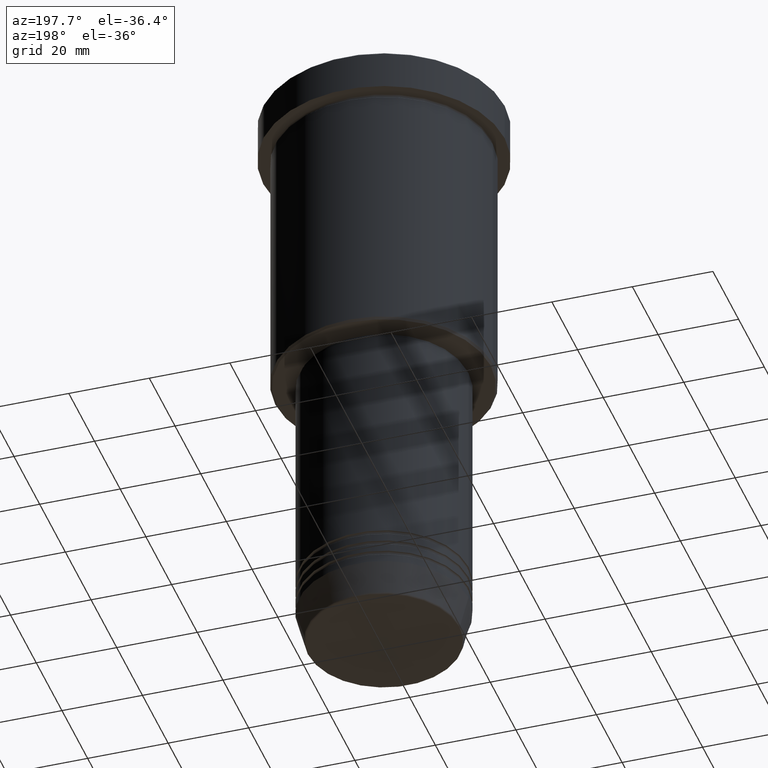
[diagram: clean part render]
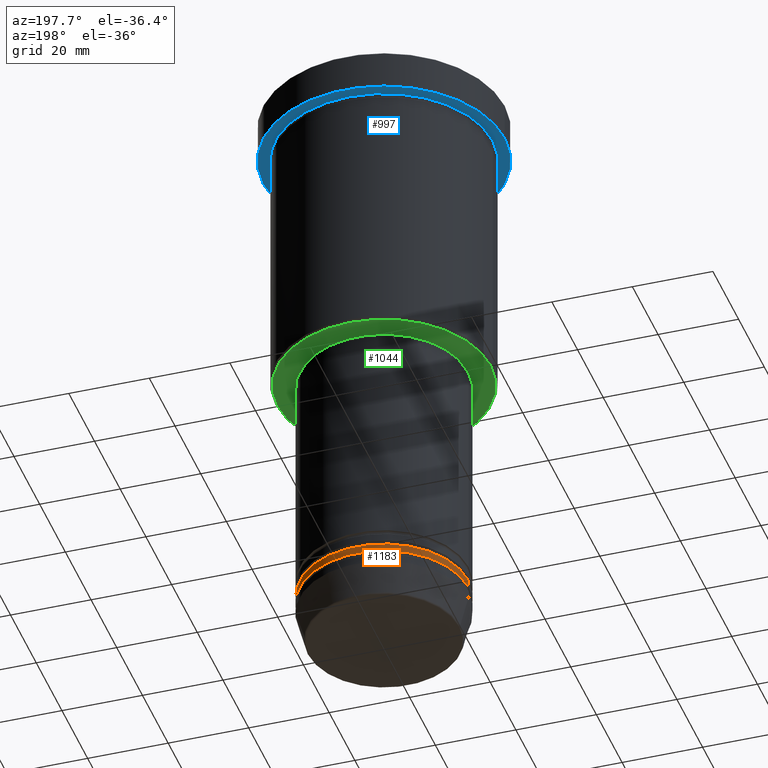
[diagram: same view with three faces highlighted in distinct colors, each labeled with its STEP entity id]
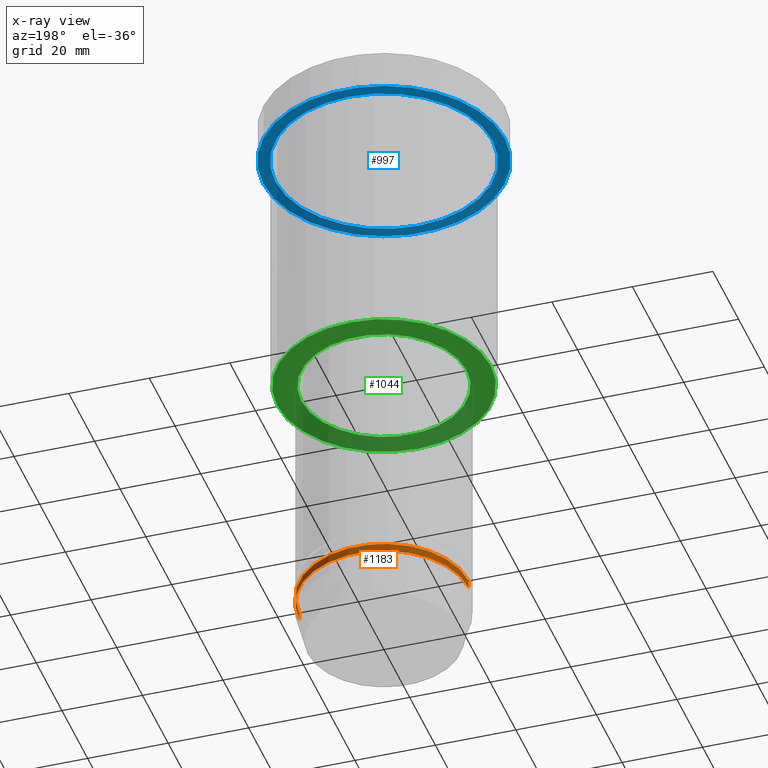
[diagram: x-ray of the same camera — body ghosted, the three highlighted faces saturated]
A machine part, auxiliary view with three faces highlighted in distinct colors.
The next image is the same camera in x-ray (body ghosted, the three faces saturated) — at least one of them is partly hidden behind the body in this view.
Their STEP definitions:

[orange] entity #1183 — the highlighted cylindrical surface (partial cylindrical patch) has radius 21 mm, axis along (-0, -0, 1).
#22 = DIRECTION ( 'NONE',  ( -0.000000000000000000, -0.000000000000000000, 1.000000000000000000 ) ) ;
#37 = DIRECTION ( 'NONE',  ( -0.000000000000000000, -0.000000000000000000, 1.000000000000000000 ) ) ;
#61 = DIRECTION ( 'NONE',  ( 1.000000000000000000, 0.000000000000000000, 0.000000000000000000 ) ) ;
#121 = VECTOR ( 'NONE', #37, 1000.000000000000000 ) ;
#129 = EDGE_CURVE ( 'NONE', #863, #1022, #723, .T. ) ;
#135 = ORIENTED_EDGE ( 'NONE', *, *, #440, .F. ) ;
#147 = DIRECTION ( 'NONE',  ( -0.000000000000000000, -0.000000000000000000, 1.000000000000000000 ) ) ;
#188 = ORIENTED_EDGE ( 'NONE', *, *, #129, .T. ) ;
#202 = DIRECTION ( 'NONE',  ( 1.000000000000000000, 0.000000000000000000, 0.000000000000000000 ) ) ;
#232 = CARTESIAN_POINT ( 'NONE',  ( -21.00000000000000000, 2.571758278209441661E-15, -139.9999999999999716 ) ) ;
#244 = CARTESIAN_POINT ( 'NONE',  ( 21.00000000000000000, 0.000000000000000000, -137.9999999999999432 ) ) ;
#293 = AXIS2_PLACEMENT_3D ( 'NONE', #1037, #592, #61 ) ;
#356 = FACE_OUTER_BOUND ( 'NONE', #1163, .T. ) ;
#392 = VERTEX_POINT ( 'NONE', #1014 ) ;
#404 = CIRCLE ( 'NONE', #736, 21.00000000000000000 ) ;
#411 = EDGE_CURVE ( 'NONE', #1022, #392, #1144, .T. ) ;
#422 = DIRECTION ( 'NONE',  ( 1.000000000000000000, 0.000000000000000000, 0.000000000000000000 ) ) ;
#440 = EDGE_CURVE ( 'NONE', #863, #1154, #1153, .T. ) ;
#481 = CARTESIAN_POINT ( 'NONE',  ( -21.00000000000000000, 2.571758278209441661E-15, 0.000000000000000000 ) ) ;
#586 = AXIS2_PLACEMENT_3D ( 'NONE', #896, #1077, #422 ) ;
#592 = DIRECTION ( 'NONE',  ( -0.000000000000000000, -0.000000000000000000, 1.000000000000000000 ) ) ;
#612 = CARTESIAN_POINT ( 'NONE',  ( 21.00000000000000000, 0.000000000000000000, 0.000000000000000000 ) ) ;
#622 = ORIENTED_EDGE ( 'NONE', *, *, #411, .T. ) ;
#723 = CIRCLE ( 'NONE', #293, 21.00000000000000000 ) ;
#728 = CYLINDRICAL_SURFACE ( 'NONE', #586, 21.00000000000000000 ) ;
#736 = AXIS2_PLACEMENT_3D ( 'NONE', #773, #22, #202 ) ;
#773 = CARTESIAN_POINT ( 'NONE',  ( 0.000000000000000000, 0.000000000000000000, -137.9999999999999432 ) ) ;
#863 = VERTEX_POINT ( 'NONE', #869 ) ;
#869 = CARTESIAN_POINT ( 'NONE',  ( 21.00000000000000000, 0.000000000000000000, -139.9999999999999716 ) ) ;
#888 = ORIENTED_EDGE ( 'NONE', *, *, #986, .F. ) ;
#896 = CARTESIAN_POINT ( 'NONE',  ( 0.000000000000000000, 0.000000000000000000, 0.000000000000000000 ) ) ;
#910 = VECTOR ( 'NONE', #147, 1000.000000000000000 ) ;
#986 = EDGE_CURVE ( 'NONE', #1154, #392, #404, .T. ) ;
#1014 = CARTESIAN_POINT ( 'NONE',  ( -21.00000000000000000, 2.571758278209441661E-15, -137.9999999999999432 ) ) ;
#1022 = VERTEX_POINT ( 'NONE', #232 ) ;
#1037 = CARTESIAN_POINT ( 'NONE',  ( 0.000000000000000000, 0.000000000000000000, -139.9999999999999716 ) ) ;
#1077 = DIRECTION ( 'NONE',  ( -0.000000000000000000, -0.000000000000000000, 1.000000000000000000 ) ) ;
#1144 = LINE ( 'NONE', #481, #121 ) ;
#1153 = LINE ( 'NONE', #612, #910 ) ;
#1154 = VERTEX_POINT ( 'NONE', #244 ) ;
#1163 = EDGE_LOOP ( 'NONE', ( #188, #622, #888, #135 ) ) ;
#1183 = ADVANCED_FACE ( 'NONE', ( #356 ), #728, .T. ) ;

[blue] entity #997 — the highlighted planar face has unit normal (0, 0, -1).
#24 = CARTESIAN_POINT ( 'NONE',  ( 0.000000000000000000, 0.000000000000000000, -9.999999999999992895 ) ) ;
#122 = DIRECTION ( 'NONE',  ( 1.000000000000000000, 0.000000000000000000, 0.000000000000000000 ) ) ;
#137 = AXIS2_PLACEMENT_3D ( 'NONE', #165, #731, #1064 ) ;
#165 = CARTESIAN_POINT ( 'NONE',  ( 0.000000000000000000, 0.000000000000000000, -9.999999999999992895 ) ) ;
#198 = CIRCLE ( 'NONE', #646, 30.00000000000000000 ) ;
#227 = EDGE_CURVE ( 'NONE', #1039, #1047, #198, .T. ) ;
#301 = FACE_BOUND ( 'NONE', #639, .T. ) ;
#331 = CARTESIAN_POINT ( 'NONE',  ( -30.00000000000000000, 3.673940397442059178E-15, -9.999999999999992895 ) ) ;
#367 = VERTEX_POINT ( 'NONE', #839 ) ;
#379 = FACE_OUTER_BOUND ( 'NONE', #492, .T. ) ;
#400 = EDGE_CURVE ( 'NONE', #367, #804, #1071, .T. ) ;
#433 = CARTESIAN_POINT ( 'NONE',  ( 0.000000000000000000, 0.000000000000000000, -9.999999999999992895 ) ) ;
#456 = EDGE_CURVE ( 'NONE', #1047, #1039, #759, .T. ) ;
#474 = AXIS2_PLACEMENT_3D ( 'NONE', #433, #725, #808 ) ;
#492 = EDGE_LOOP ( 'NONE', ( #693, #1016 ) ) ;
#639 = EDGE_LOOP ( 'NONE', ( #772, #1137 ) ) ;
#646 = AXIS2_PLACEMENT_3D ( 'NONE', #24, #774, #122 ) ;
#674 = CARTESIAN_POINT ( 'NONE',  ( 0.000000000000000000, 0.000000000000000000, -9.999999999999992895 ) ) ;
#677 = DIRECTION ( 'NONE',  ( -1.000000000000000000, 0.000000000000000000, -0.000000000000000000 ) ) ;
#693 = ORIENTED_EDGE ( 'NONE', *, *, #456, .F. ) ;
#701 = DIRECTION ( 'NONE',  ( -1.000000000000000000, 0.000000000000000000, 0.000000000000000000 ) ) ;
#725 = DIRECTION ( 'NONE',  ( -0.000000000000000000, -0.000000000000000000, 1.000000000000000000 ) ) ;
#731 = DIRECTION ( 'NONE',  ( -0.000000000000000000, -0.000000000000000000, 1.000000000000000000 ) ) ;
#751 = CARTESIAN_POINT ( 'NONE',  ( 0.000000000000000000, 30.00000000000000000, -9.999999999999992895 ) ) ;
#759 = CIRCLE ( 'NONE', #474, 30.00000000000000000 ) ;
#772 = ORIENTED_EDGE ( 'NONE', *, *, #400, .T. ) ;
#774 = DIRECTION ( 'NONE',  ( -0.000000000000000000, -0.000000000000000000, 1.000000000000000000 ) ) ;
#784 = DIRECTION ( 'NONE',  ( -0.000000000000000000, -0.000000000000000000, 1.000000000000000000 ) ) ;
#797 = AXIS2_PLACEMENT_3D ( 'NONE', #751, #1030, #677 ) ;
#804 = VERTEX_POINT ( 'NONE', #957 ) ;
#808 = DIRECTION ( 'NONE',  ( 1.000000000000000000, 0.000000000000000000, 0.000000000000000000 ) ) ;
#839 = CARTESIAN_POINT ( 'NONE',  ( -27.00000000000000355, 0.000000000000000000, -9.999999999999992895 ) ) ;
#848 = PLANE ( 'NONE',  #797 ) ;
#859 = CARTESIAN_POINT ( 'NONE',  ( 30.00000000000000000, 0.000000000000000000, -9.999999999999992895 ) ) ;
#957 = CARTESIAN_POINT ( 'NONE',  ( 27.00000000000000355, 3.306546357697854128E-15, -9.999999999999992895 ) ) ;
#997 = ADVANCED_FACE ( 'NONE', ( #301, #379 ), #848, .T. ) ;
#1016 = ORIENTED_EDGE ( 'NONE', *, *, #227, .F. ) ;
#1030 = DIRECTION ( 'NONE',  ( 0.000000000000000000, 0.000000000000000000, -1.000000000000000000 ) ) ;
#1036 = AXIS2_PLACEMENT_3D ( 'NONE', #674, #784, #701 ) ;
#1039 = VERTEX_POINT ( 'NONE', #331 ) ;
#1047 = VERTEX_POINT ( 'NONE', #859 ) ;
#1064 = DIRECTION ( 'NONE',  ( -1.000000000000000000, 0.000000000000000000, 0.000000000000000000 ) ) ;
#1071 = CIRCLE ( 'NONE', #1036, 27.00000000000000355 ) ;
#1108 = CIRCLE ( 'NONE', #137, 27.00000000000000355 ) ;
#1115 = EDGE_CURVE ( 'NONE', #804, #367, #1108, .T. ) ;
#1137 = ORIENTED_EDGE ( 'NONE', *, *, #1115, .T. ) ;

[green] entity #1044 — the highlighted planar face has unit normal (0, 0, -1).
#1 = VERTEX_POINT ( 'NONE', #958 ) ;
#26 = CIRCLE ( 'NONE', #417, 26.50000000000001066 ) ;
#48 = CARTESIAN_POINT ( 'NONE',  ( 0.000000000000000000, 0.000000000000000000, -75.99999999999998579 ) ) ;
#67 = CIRCLE ( 'NONE', #494, 20.50000000000000000 ) ;
#98 = EDGE_LOOP ( 'NONE', ( #1124, #207 ) ) ;
#116 = VERTEX_POINT ( 'NONE', #222 ) ;
#144 = CARTESIAN_POINT ( 'NONE',  ( -26.50000000000001066, 3.275930187719170735E-15, -75.99999999999998579 ) ) ;
#207 = ORIENTED_EDGE ( 'NONE', *, *, #875, .T. ) ;
#209 = PLANE ( 'NONE',  #272 ) ;
#214 = DIRECTION ( 'NONE',  ( 0.000000000000000000, 0.000000000000000000, -1.000000000000000000 ) ) ;
#222 = CARTESIAN_POINT ( 'NONE',  ( -20.50000000000000000, 2.510525938252074481E-15, -75.99999999999998579 ) ) ;
#272 = AXIS2_PLACEMENT_3D ( 'NONE', #1103, #214, #941 ) ;
#275 = AXIS2_PLACEMENT_3D ( 'NONE', #278, #913, #283 ) ;
#278 = CARTESIAN_POINT ( 'NONE',  ( 0.000000000000000000, 0.000000000000000000, -75.99999999999998579 ) ) ;
#283 = DIRECTION ( 'NONE',  ( 1.000000000000000000, 0.000000000000000000, 0.000000000000000000 ) ) ;
#298 = CARTESIAN_POINT ( 'NONE',  ( 20.50000000000000000, 0.000000000000000000, -75.99999999999998579 ) ) ;
#308 = FACE_BOUND ( 'NONE', #1098, .T. ) ;
#372 = VERTEX_POINT ( 'NONE', #298 ) ;
#393 = DIRECTION ( 'NONE',  ( -1.000000000000000000, 0.000000000000000000, 0.000000000000000000 ) ) ;
#417 = AXIS2_PLACEMENT_3D ( 'NONE', #48, #1009, #1121 ) ;
#427 = DIRECTION ( 'NONE',  ( -0.000000000000000000, -0.000000000000000000, 1.000000000000000000 ) ) ;
#494 = AXIS2_PLACEMENT_3D ( 'NONE', #572, #427, #714 ) ;
#566 = EDGE_CURVE ( 'NONE', #372, #116, #628, .T. ) ;
#572 = CARTESIAN_POINT ( 'NONE',  ( 0.000000000000000000, 0.000000000000000000, -75.99999999999998579 ) ) ;
#579 = CARTESIAN_POINT ( 'NONE',  ( 0.000000000000000000, 0.000000000000000000, -75.99999999999998579 ) ) ;
#617 = VERTEX_POINT ( 'NONE', #144 ) ;
#628 = CIRCLE ( 'NONE', #275, 20.50000000000000000 ) ;
#714 = DIRECTION ( 'NONE',  ( 1.000000000000000000, 0.000000000000000000, 0.000000000000000000 ) ) ;
#758 = ORIENTED_EDGE ( 'NONE', *, *, #881, .T. ) ;
#875 = EDGE_CURVE ( 'NONE', #617, #1, #26, .T. ) ;
#881 = EDGE_CURVE ( 'NONE', #116, #372, #67, .T. ) ;
#913 = DIRECTION ( 'NONE',  ( -0.000000000000000000, -0.000000000000000000, 1.000000000000000000 ) ) ;
#941 = DIRECTION ( 'NONE',  ( -1.000000000000000000, 0.000000000000000000, -0.000000000000000000 ) ) ;
#958 = CARTESIAN_POINT ( 'NONE',  ( 26.50000000000001066, 0.000000000000000000, -75.99999999999998579 ) ) ;
#1008 = EDGE_CURVE ( 'NONE', #1, #617, #1147, .T. ) ;
#1009 = DIRECTION ( 'NONE',  ( 0.000000000000000000, 0.000000000000000000, -1.000000000000000000 ) ) ;
#1011 = AXIS2_PLACEMENT_3D ( 'NONE', #579, #1024, #393 ) ;
#1024 = DIRECTION ( 'NONE',  ( 0.000000000000000000, 0.000000000000000000, -1.000000000000000000 ) ) ;
#1044 = ADVANCED_FACE ( 'NONE', ( #1125, #308 ), #209, .T. ) ;
#1098 = EDGE_LOOP ( 'NONE', ( #1177, #758 ) ) ;
#1103 = CARTESIAN_POINT ( 'NONE',  ( 0.000000000000000000, 27.00000000000000355, -75.99999999999998579 ) ) ;
#1121 = DIRECTION ( 'NONE',  ( -1.000000000000000000, 0.000000000000000000, 0.000000000000000000 ) ) ;
#1124 = ORIENTED_EDGE ( 'NONE', *, *, #1008, .T. ) ;
#1125 = FACE_OUTER_BOUND ( 'NONE', #98, .T. ) ;
#1147 = CIRCLE ( 'NONE', #1011, 26.50000000000001066 ) ;
#1177 = ORIENTED_EDGE ( 'NONE', *, *, #566, .T. ) ;